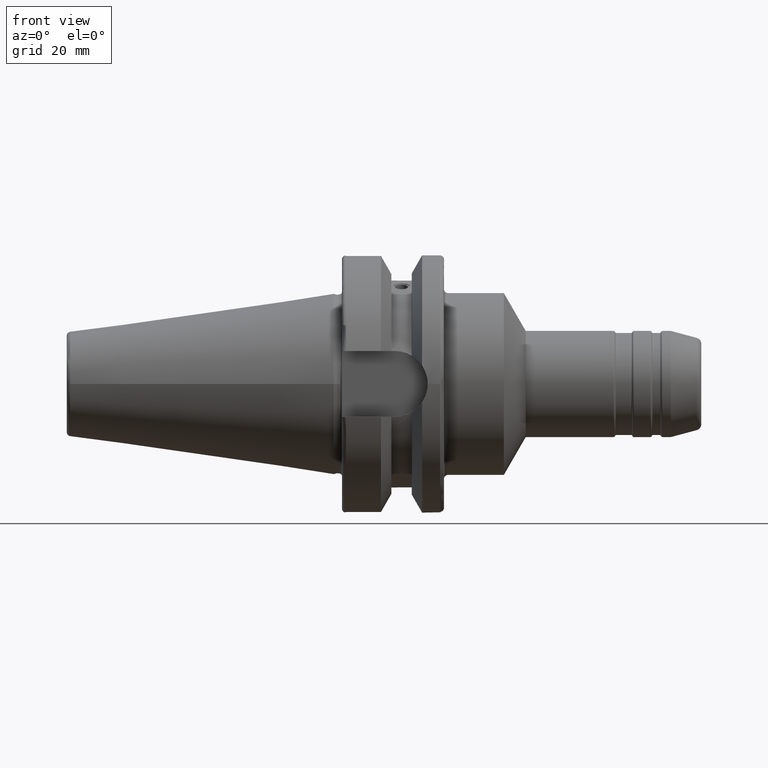
[diagram: clean part render]
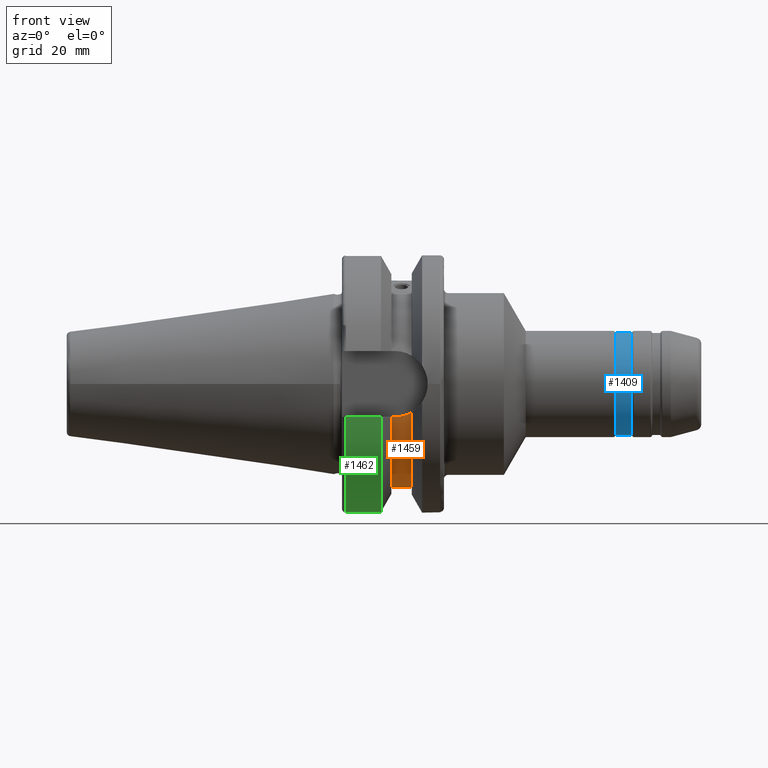
[diagram: same view with three faces highlighted in distinct colors, each labeled with its STEP entity id]
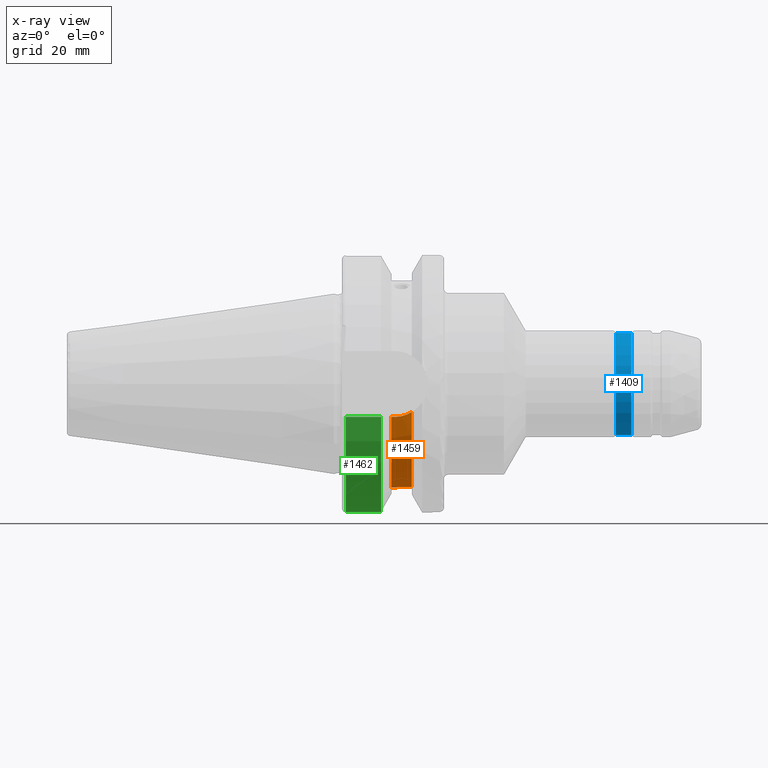
[diagram: x-ray of the same camera — body ghosted, the three highlighted faces saturated]
A machine part, front view with three faces highlighted in distinct colors.
The next image is the same camera in x-ray (body ghosted, the three faces saturated) — at least one of them is partly hidden behind the body in this view.
Their STEP definitions:

[orange] entity #1459 — the highlighted cylindrical surface (partial cylindrical patch) has radius 25.5 mm, axis along (1, 0, 0).
#84=FACE_BOUND('',#311,.T.);
#99=B_SPLINE_CURVE_WITH_KNOTS('',3,(#2542,#2543,#2544,#2545,#2546,#2547,
#2548,#2549,#2550,#2551,#2552,#2553,#2554,#2555,#2556,#2557,#2558,#2559,
#2560,#2561,#2562,#2563,#2564,#2565,#2566,#2567),.UNSPECIFIED.,.F.,.F.,
(4,2,2,2,2,2,2,2,2,2,2,2,4),(0.,0.0753706034311402,0.15074120686228,0.226111713565585,
0.301482220268889,0.376852726972193,0.452223233675497,0.527593837106637,
0.602964440537777,0.678335043968917,0.753705647400058,0.829076154103362,
0.904446660806666),.UNSPECIFIED.);
#100=B_SPLINE_CURVE_WITH_KNOTS('',3,(#2568,#2569,#2570,#2571,#2572,#2573,
#2574,#2575,#2576,#2577),.UNSPECIFIED.,.F.,.F.,(4,2,2,2,4),(0.904446660806666,
0.97981716750997,1.05518767421327,1.13055827764441,1.20592888107555),
 .UNSPECIFIED.);
#101=B_SPLINE_CURVE_WITH_KNOTS('',3,(#2603,#2604,#2605,#2606,#2607,#2608),
 .UNSPECIFIED.,.F.,.F.,(4,2,4),(2.02525951614585,2.13846497015446,2.44402436414645),
 .UNSPECIFIED.);
#111=B_SPLINE_CURVE_WITH_KNOTS('',3,(#2743,#2744,#2745,#2746,#2747,#2748),
 .UNSPECIFIED.,.F.,.F.,(4,2,4),(2.44402436414645,2.74958375813844,2.86278921214705),
 .UNSPECIFIED.);
#142=CYLINDRICAL_SURFACE('',#1657,25.5);
#211=FACE_OUTER_BOUND('',#310,.T.);
#310=EDGE_LOOP('',(#1232,#1233,#1234,#1235,#1236,#1237));
#311=EDGE_LOOP('',(#1238,#1239));
#391=LINE('',#2680,#464);
#399=LINE('',#2742,#472);
#464=VECTOR('',#2036,10.);
#472=VECTOR('',#2068,10.);
#558=CIRCLE('',#1656,25.5);
#559=CIRCLE('',#1658,25.5);
#657=VERTEX_POINT('',#2539);
#658=VERTEX_POINT('',#2541);
#665=VERTEX_POINT('',#2601);
#666=VERTEX_POINT('',#2602);
#682=VERTEX_POINT('',#2679);
#693=VERTEX_POINT('',#2735);
#694=VERTEX_POINT('',#2739);
#695=VERTEX_POINT('',#2741);
#838=EDGE_CURVE('',#658,#657,#99,.T.);
#839=EDGE_CURVE('',#657,#658,#100,.T.);
#850=EDGE_CURVE('',#665,#666,#101,.T.);
#868=EDGE_CURVE('',#666,#682,#391,.T.);
#884=EDGE_CURVE('',#665,#693,#558,.T.);
#886=EDGE_CURVE('',#682,#694,#559,.T.);
#887=EDGE_CURVE('',#694,#695,#399,.T.);
#888=EDGE_CURVE('',#695,#693,#111,.T.);
#1232=ORIENTED_EDGE('',*,*,#850,.T.);
#1233=ORIENTED_EDGE('',*,*,#868,.T.);
#1234=ORIENTED_EDGE('',*,*,#886,.T.);
#1235=ORIENTED_EDGE('',*,*,#887,.T.);
#1236=ORIENTED_EDGE('',*,*,#888,.T.);
#1237=ORIENTED_EDGE('',*,*,#884,.F.);
#1238=ORIENTED_EDGE('',*,*,#838,.T.);
#1239=ORIENTED_EDGE('',*,*,#839,.T.);
#1459=ADVANCED_FACE('',(#211,#84),#142,.T.);
#1656=AXIS2_PLACEMENT_3D('',#2736,#2061,#2062);
#1657=AXIS2_PLACEMENT_3D('',#2738,#2064,#2065);
#1658=AXIS2_PLACEMENT_3D('',#2740,#2066,#2067);
#2036=DIRECTION('',(-1.,0.,0.));
#2061=DIRECTION('center_axis',(1.,0.,0.));
#2062=DIRECTION('ref_axis',(0.,0.,-1.));
#2064=DIRECTION('center_axis',(1.,0.,0.));
#2065=DIRECTION('ref_axis',(0.,1.,0.));
#2066=DIRECTION('center_axis',(1.,0.,0.));
#2067=DIRECTION('ref_axis',(0.,0.,-1.));
#2068=DIRECTION('',(1.,0.,0.));
#2539=CARTESIAN_POINT('',(18.6,8.72151365480455,-23.9621618300407));
#2541=CARTESIAN_POINT('',(16.6,10.5740324061887,-23.2043064682587));
#2542=CARTESIAN_POINT('Ctrl Pts',(16.6,10.5740324061887,-23.2043064682587));
#2543=CARTESIAN_POINT('Ctrl Pts',(16.3487646552295,10.5740324061887,-23.2043064682587));
#2544=CARTESIAN_POINT('Ctrl Pts',(16.0808539398032,10.5282360748462,-23.2253464640325));
#2545=CARTESIAN_POINT('Ctrl Pts',(15.5881259002915,10.341480204317,-23.3091025219309));
#2546=CARTESIAN_POINT('Ctrl Pts',(15.3632997889944,10.2004525041704,-23.3716147691749));
#2547=CARTESIAN_POINT('Ctrl Pts',(15.0082733140735,9.87358134491179,-23.5115716095889));
#2548=CARTESIAN_POINT('Ctrl Pts',(14.8543700008966,9.66590292532593,-23.5983277097944));
#2549=CARTESIAN_POINT('Ctrl Pts',(14.6502304925719,9.20795105223416,-23.78075666331));
#2550=CARTESIAN_POINT('Ctrl Pts',(14.6,8.95759735138452,-23.87623439169));
#2551=CARTESIAN_POINT('Ctrl Pts',(14.6,8.48542995822459,-24.0480892683913));
#2552=CARTESIAN_POINT('Ctrl Pts',(14.6502304925719,8.23227599607073,-24.1358733420695));
#2553=CARTESIAN_POINT('Ctrl Pts',(14.8543700008966,7.76420143750494,-24.290490445821));
#2554=CARTESIAN_POINT('Ctrl Pts',(15.0082733140735,7.54934479194869,-24.357524532261));
#2555=CARTESIAN_POINT('Ctrl Pts',(15.3632997889944,7.20898443387373,-24.4604201035206));
#2556=CARTESIAN_POINT('Ctrl Pts',(15.5881259002915,7.0607688498685,-24.5031838021693));
#2557=CARTESIAN_POINT('Ctrl Pts',(16.0808539398032,6.86386819677648,-24.5590672990511));
#2558=CARTESIAN_POINT('Ctrl Pts',(16.3487646552295,6.81526192304506,-24.5723870415614));
#2559=CARTESIAN_POINT('Ctrl Pts',(16.8512353447705,6.81526192304506,-24.5723870415614));
#2560=CARTESIAN_POINT('Ctrl Pts',(17.1191460601968,6.86386819677648,-24.5590672990511));
#2561=CARTESIAN_POINT('Ctrl Pts',(17.6118740997085,7.0607688498685,-24.5031838021693));
#2562=CARTESIAN_POINT('Ctrl Pts',(17.8367002110056,7.20898443387373,-24.4604201035206));
#2563=CARTESIAN_POINT('Ctrl Pts',(18.1917266859265,7.54934479194869,-24.357524532261));
#2564=CARTESIAN_POINT('Ctrl Pts',(18.3456299991034,7.76420143750494,-24.290490445821));
#2565=CARTESIAN_POINT('Ctrl Pts',(18.5497695074281,8.23227599607073,-24.1358733420695));
#2566=CARTESIAN_POINT('Ctrl Pts',(18.6,8.48542995822459,-24.0480892683913));
#2567=CARTESIAN_POINT('Ctrl Pts',(18.6,8.72151365480455,-23.9621618300407));
#2568=CARTESIAN_POINT('Ctrl Pts',(18.6,8.72151365480455,-23.9621618300407));
#2569=CARTESIAN_POINT('Ctrl Pts',(18.6,8.95759735138452,-23.87623439169));
#2570=CARTESIAN_POINT('Ctrl Pts',(18.5497695074281,9.20795105223416,-23.78075666331));
#2571=CARTESIAN_POINT('Ctrl Pts',(18.3456299991034,9.66590292532593,-23.5983277097944));
#2572=CARTESIAN_POINT('Ctrl Pts',(18.1917266859265,9.87358134491179,-23.5115716095889));
#2573=CARTESIAN_POINT('Ctrl Pts',(17.8367002110056,10.2004525041704,-23.3716147691749));
#2574=CARTESIAN_POINT('Ctrl Pts',(17.6118740997085,10.341480204317,-23.3091025219309));
#2575=CARTESIAN_POINT('Ctrl Pts',(17.1191460601968,10.5282360748462,-23.2253464640325));
#2576=CARTESIAN_POINT('Ctrl Pts',(16.8512353447705,10.5740324061887,-23.2043064682587));
#2577=CARTESIAN_POINT('Ctrl Pts',(16.6,10.5740324061887,-23.2043064682587));
#2601=CARTESIAN_POINT('',(19.1,-24.5493380766162,-6.89782574439221));
#2602=CARTESIAN_POINT('',(14.95,-24.1960224003864,-8.05));
#2603=CARTESIAN_POINT('Ctrl Pts',(19.1,-24.5493380766162,-6.89782574439221));
#2604=CARTESIAN_POINT('Ctrl Pts',(18.7625417379862,-24.492291659194,-7.10085374759973));
#2605=CARTESIAN_POINT('Ctrl Pts',(18.4072379028184,-24.4390565244262,-7.28065599998141));
#2606=CARTESIAN_POINT('Ctrl Pts',(17.0497516664971,-24.2670783971366,-7.84501312719341));
#2607=CARTESIAN_POINT('Ctrl Pts',(15.9685313133066,-24.1960224003864,-8.05));
#2608=CARTESIAN_POINT('Ctrl Pts',(14.95,-24.1960224003864,-8.05));
#2679=CARTESIAN_POINT('',(14.1,-24.1960224003864,-8.05));
#2680=CARTESIAN_POINT('',(16.6,-24.1960224003864,-8.05));
#2735=CARTESIAN_POINT('',(19.1,24.5493380766162,-6.89782574439221));
#2736=CARTESIAN_POINT('Origin',(19.1,0.,0.));
#2738=CARTESIAN_POINT('Origin',(16.6,0.,0.));
#2739=CARTESIAN_POINT('',(14.1,24.1960224003864,-8.05));
#2740=CARTESIAN_POINT('Origin',(14.1,0.,0.));
#2741=CARTESIAN_POINT('',(14.95,24.1960224003864,-8.05));
#2742=CARTESIAN_POINT('',(16.6,24.1960224003864,-8.05));
#2743=CARTESIAN_POINT('Ctrl Pts',(14.95,24.1960224003864,-8.05));
#2744=CARTESIAN_POINT('Ctrl Pts',(15.9685313133066,24.1960224003864,-8.05));
#2745=CARTESIAN_POINT('Ctrl Pts',(17.0497516664971,24.2670783971366,-7.84501312719341));
#2746=CARTESIAN_POINT('Ctrl Pts',(18.4072379028184,24.4390565244262,-7.28065599998141));
#2747=CARTESIAN_POINT('Ctrl Pts',(18.7625417379862,24.492291659194,-7.10085374759973));
#2748=CARTESIAN_POINT('Ctrl Pts',(19.1,24.5493380766162,-6.89782574439221));

[blue] entity #1409 — the highlighted cylindrical surface (bore or boss wall) has radius 12.5 mm, axis along (1, 0, 0).
#120=CYLINDRICAL_SURFACE('',#1540,12.5);
#161=FACE_OUTER_BOUND('',#252,.T.);
#252=EDGE_LOOP('',(#998,#999,#1000,#1001));
#355=LINE('',#2346,#428);
#428=VECTOR('',#1788,12.5);
#507=CIRCLE('',#1537,12.5);
#510=CIRCLE('',#1541,12.5);
#609=VERTEX_POINT('',#2339);
#611=VERTEX_POINT('',#2345);
#756=EDGE_CURVE('',#609,#609,#507,.T.);
#759=EDGE_CURVE('',#609,#611,#355,.T.);
#760=EDGE_CURVE('',#611,#611,#510,.T.);
#998=ORIENTED_EDGE('',*,*,#756,.F.);
#999=ORIENTED_EDGE('',*,*,#759,.T.);
#1000=ORIENTED_EDGE('',*,*,#760,.F.);
#1001=ORIENTED_EDGE('',*,*,#759,.F.);
#1409=ADVANCED_FACE('',(#161),#120,.T.);
#1537=AXIS2_PLACEMENT_3D('',#2340,#1780,#1781);
#1540=AXIS2_PLACEMENT_3D('',#2344,#1786,#1787);
#1541=AXIS2_PLACEMENT_3D('',#2347,#1789,#1790);
#1780=DIRECTION('center_axis',(1.,0.,0.));
#1781=DIRECTION('ref_axis',(0.,1.22464679914735E-16,1.));
#1786=DIRECTION('center_axis',(1.,0.,0.));
#1787=DIRECTION('ref_axis',(0.,0.,-1.));
#1788=DIRECTION('',(-1.,0.,0.));
#1789=DIRECTION('center_axis',(-1.,0.,0.));
#1790=DIRECTION('ref_axis',(0.,1.22464679914735E-16,1.));
#2339=CARTESIAN_POINT('',(72.8845299461621,-1.53080849893419E-15,12.5));
#2340=CARTESIAN_POINT('Origin',(72.8845299461621,0.,0.));
#2344=CARTESIAN_POINT('Origin',(71.,0.,0.));
#2345=CARTESIAN_POINT('',(69.1154700538379,-1.53080849893419E-15,12.5));
#2346=CARTESIAN_POINT('',(71.,-1.53080849893419E-15,12.5));
#2347=CARTESIAN_POINT('Origin',(69.1154700538379,0.,0.));

[green] entity #1462 — the highlighted cylindrical surface (partial cylindrical patch) has radius 31.5 mm, axis along (1, 0, 0).
#143=CYLINDRICAL_SURFACE('',#1663,31.5);
#214=FACE_OUTER_BOUND('',#314,.T.);
#314=EDGE_LOOP('',(#1248,#1249,#1250,#1251));
#394=LINE('',#2697,#467);
#401=LINE('',#2762,#474);
#467=VECTOR('',#2039,10.);
#474=VECTOR('',#2082,10.);
#561=CIRCLE('',#1662,31.5000000000001);
#562=CIRCLE('',#1664,31.5);
#685=VERTEX_POINT('',#2685);
#686=VERTEX_POINT('',#2696);
#697=VERTEX_POINT('',#2754);
#698=VERTEX_POINT('',#2760);
#872=EDGE_CURVE('',#686,#685,#394,.T.);
#891=EDGE_CURVE('',#686,#697,#561,.T.);
#893=EDGE_CURVE('',#685,#698,#562,.T.);
#894=EDGE_CURVE('',#698,#697,#401,.T.);
#1248=ORIENTED_EDGE('',*,*,#872,.T.);
#1249=ORIENTED_EDGE('',*,*,#893,.T.);
#1250=ORIENTED_EDGE('',*,*,#894,.T.);
#1251=ORIENTED_EDGE('',*,*,#891,.F.);
#1462=ADVANCED_FACE('',(#214),#143,.T.);
#1662=AXIS2_PLACEMENT_3D('',#2755,#2076,#2077);
#1663=AXIS2_PLACEMENT_3D('',#2759,#2078,#2079);
#1664=AXIS2_PLACEMENT_3D('',#2761,#2080,#2081);
#2039=DIRECTION('',(-1.,0.,0.));
#2076=DIRECTION('center_axis',(1.,0.,0.));
#2077=DIRECTION('ref_axis',(0.,0.,-1.));
#2078=DIRECTION('center_axis',(1.,0.,0.));
#2079=DIRECTION('ref_axis',(0.,1.,0.));
#2080=DIRECTION('center_axis',(1.,0.,0.));
#2081=DIRECTION('ref_axis',(0.,0.,-1.));
#2082=DIRECTION('',(1.,0.,0.));
#2685=CARTESIAN_POINT('',(2.99999999999999,-30.4540227227866,-8.05));
#2696=CARTESIAN_POINT('',(11.5690363073382,-30.4540227227866,-8.05));
#2697=CARTESIAN_POINT('',(7.28451815366907,-30.4540227227866,-8.05));
#2754=CARTESIAN_POINT('',(11.5690363073382,30.4540227227866,-8.05));
#2755=CARTESIAN_POINT('Origin',(11.5690363073382,0.,0.));
#2759=CARTESIAN_POINT('Origin',(7.28451815366907,0.,0.));
#2760=CARTESIAN_POINT('',(2.99999999999999,30.4540227227866,-8.05));
#2761=CARTESIAN_POINT('Origin',(2.99999999999999,0.,0.));
#2762=CARTESIAN_POINT('',(7.28451815366907,30.4540227227866,-8.05));